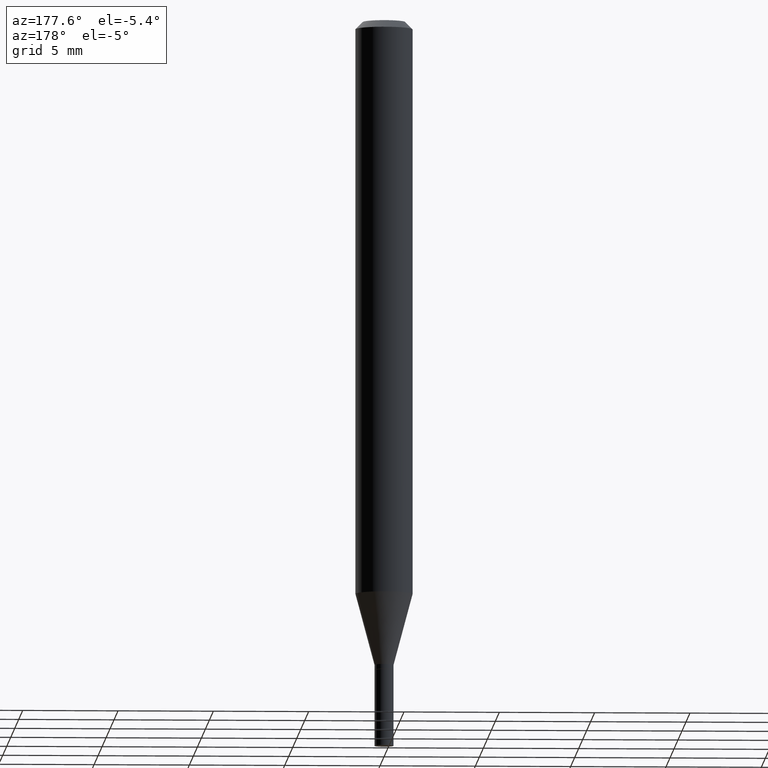
[diagram: clean part render]
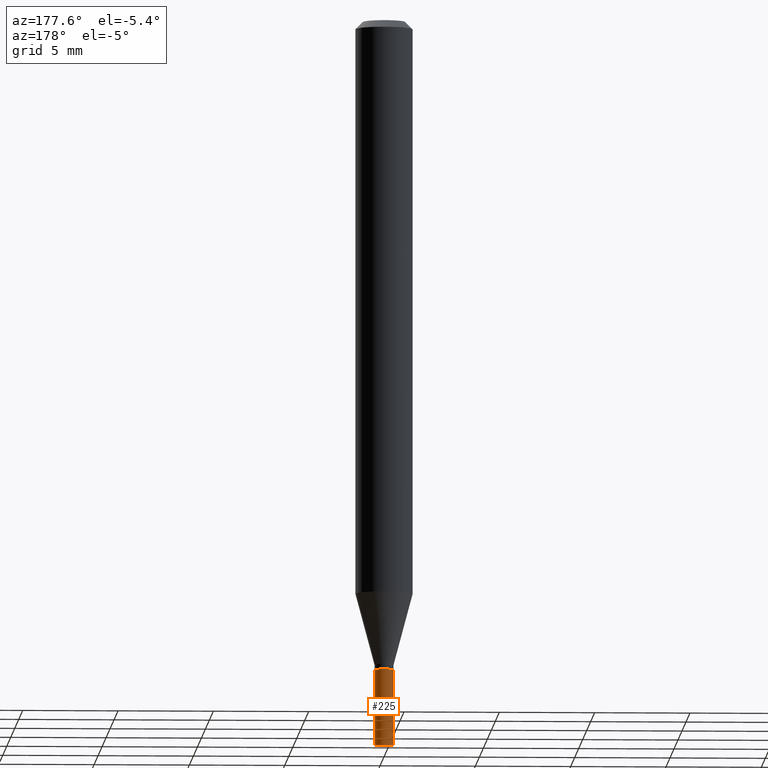
[diagram: same view with one face highlighted and labeled with its STEP entity id]
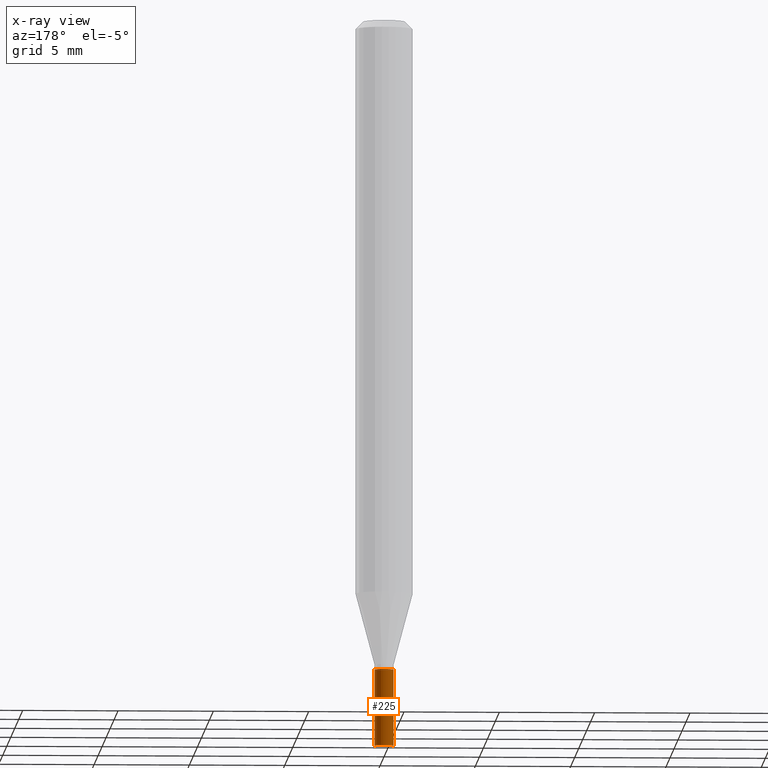
[diagram: x-ray of the same camera — body ghosted, the highlighted face saturated]
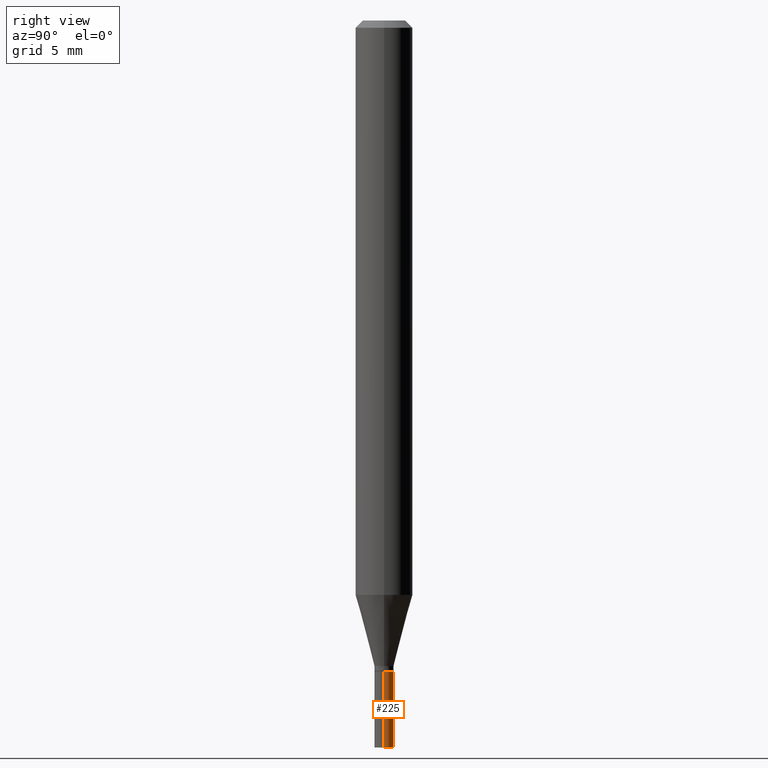
[diagram: same view with one face highlighted and labeled with its STEP entity id]
A machine part, auxiliary view. The second image highlights one B-rep face of the part: STEP entity #225.
The next image is the same camera in x-ray: the body ghosted, the highlighted face saturated — about 0% of this face is hidden behind the body in this view.
A second angle (right view) of the same face is appended — the face is thin or edge-on in the first view.
In plain terms, the highlighted cylindrical surface (edge-blend (fillet) strip) has radius 0.5004 mm, axis along (-0, 0, 1).
Its self-contained STEP definition (entity closure, byte-faithful):
#34 = EDGE_CURVE ( 'NONE', #223, #366, #446, .T. ) ;
#38 = FACE_OUTER_BOUND ( 'NONE', #348, .T. ) ;
#72 = ORIENTED_EDGE ( 'NONE', *, *, #135, .F. ) ;
#73 = AXIS2_PLACEMENT_3D ( 'NONE', #203, #431, #98 ) ;
#74 = CARTESIAN_POINT ( 'NONE',  ( 0.01969999999999999876, -1.375643647504194363E-16, 9.606068248317991466E-31 ) ) ;
#91 = CARTESIAN_POINT ( 'NONE',  ( 3.668203209277704895E-29, -5.237222008264718177E-15, -1.500000000000000222 ) ) ;
#98 = DIRECTION ( 'NONE',  ( 1.000000000000000000, -6.982962677686278543E-15, 0.000000000000000000 ) ) ;
#111 = DIRECTION ( 'NONE',  ( -2.445468806185136597E-29, 3.491481338843145583E-15, 1.000000000000000000 ) ) ;
#130 = DIRECTION ( 'NONE',  ( -2.445468806185136597E-29, 3.491481338843145583E-15, 1.000000000000000000 ) ) ;
#134 = CARTESIAN_POINT ( 'NONE',  ( -0.01969999999999999876, -4.822290933886080617E-15, -1.342500000000000249 ) ) ;
#135 = EDGE_CURVE ( 'NONE', #414, #366, #457, .T. ) ;
#165 = CARTESIAN_POINT ( 'NONE',  ( 0.01969999999999999876, -5.374786373015138180E-15, -1.500000000000000222 ) ) ;
#182 = CARTESIAN_POINT ( 'NONE',  ( 0.000000000000000000, 0.000000000000000000, 0.000000000000000000 ) ) ;
#198 = DIRECTION ( 'NONE',  ( 1.000000000000000000, -6.982962677686278543E-15, 0.000000000000000000 ) ) ;
#203 = CARTESIAN_POINT ( 'NONE',  ( 3.283041872303546419E-29, -4.687313697396923253E-15, -1.342500000000000249 ) ) ;
#207 = LINE ( 'NONE', #74, #372 ) ;
#213 = ORIENTED_EDGE ( 'NONE', *, *, #456, .T. ) ;
#216 = CARTESIAN_POINT ( 'NONE',  ( -0.01969999999999999876, 1.399769189447397278E-16, -9.690302127802162501E-31 ) ) ;
#218 = DIRECTION ( 'NONE',  ( 1.000000000000000000, -6.982962677686265922E-15, 4.876176775795935232E-29 ) ) ;
#223 = VERTEX_POINT ( 'NONE', #296 ) ;
#225 = ADVANCED_FACE ( 'NONE', ( #38 ), #258, .T. ) ;
#231 = CARTESIAN_POINT ( 'NONE',  ( 0.01969999999999999876, -4.824878062147343257E-15, -1.342500000000000249 ) ) ;
#255 = DIRECTION ( 'NONE',  ( -2.445468806185136877E-29, 3.491481338843145188E-15, 1.000000000000000000 ) ) ;
#258 = CYLINDRICAL_SURFACE ( 'NONE', #307, 0.01969999999999999876 ) ;
#289 = ORIENTED_EDGE ( 'NONE', *, *, #332, .F. ) ;
#296 = CARTESIAN_POINT ( 'NONE',  ( -0.01969999999999999876, -4.822290933886080617E-15, -1.500000000000000222 ) ) ;
#297 = AXIS2_PLACEMENT_3D ( 'NONE', #91, #130, #198 ) ;
#307 = AXIS2_PLACEMENT_3D ( 'NONE', #182, #111, #218 ) ;
#332 = EDGE_CURVE ( 'NONE', #422, #414, #207, .T. ) ;
#348 = EDGE_LOOP ( 'NONE', ( #213, #388, #72, #289 ) ) ;
#366 = VERTEX_POINT ( 'NONE', #134 ) ;
#372 = VECTOR ( 'NONE', #442, 39.37007874015748143 ) ;
#388 = ORIENTED_EDGE ( 'NONE', *, *, #34, .T. ) ;
#414 = VERTEX_POINT ( 'NONE', #231 ) ;
#422 = VERTEX_POINT ( 'NONE', #165 ) ;
#428 = VECTOR ( 'NONE', #255, 39.37007874015748143 ) ;
#431 = DIRECTION ( 'NONE',  ( -2.445468806185136597E-29, 3.491481338843145583E-15, 1.000000000000000000 ) ) ;
#442 = DIRECTION ( 'NONE',  ( -2.445468806185136877E-29, 3.491481338843145188E-15, 1.000000000000000000 ) ) ;
#446 = LINE ( 'NONE', #216, #428 ) ;
#452 = CIRCLE ( 'NONE', #297, 0.01969999999999999876 ) ;
#456 = EDGE_CURVE ( 'NONE', #422, #223, #452, .T. ) ;
#457 = CIRCLE ( 'NONE', #73, 0.01969999999999999876 ) ;